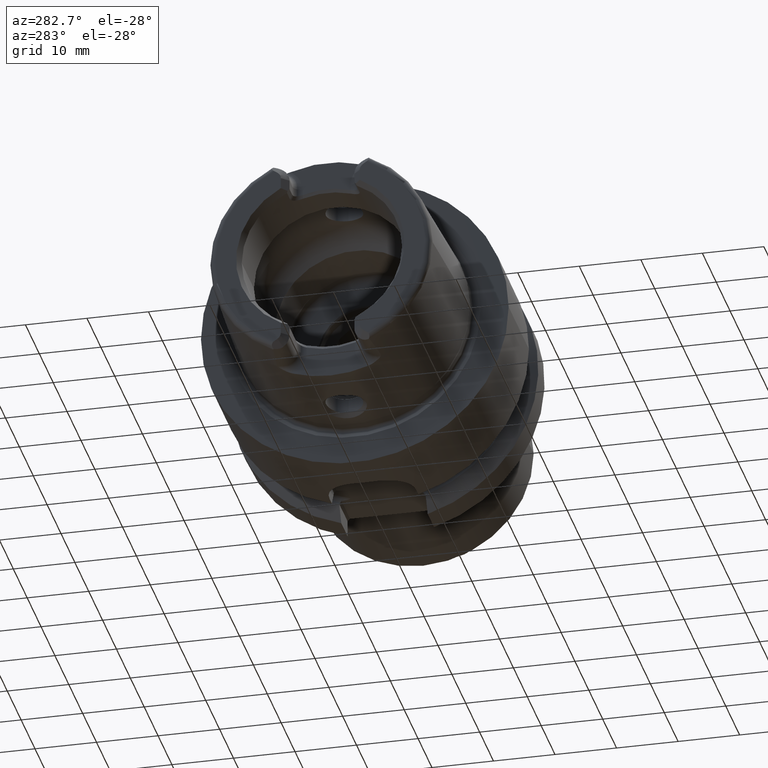
[diagram: clean part render]
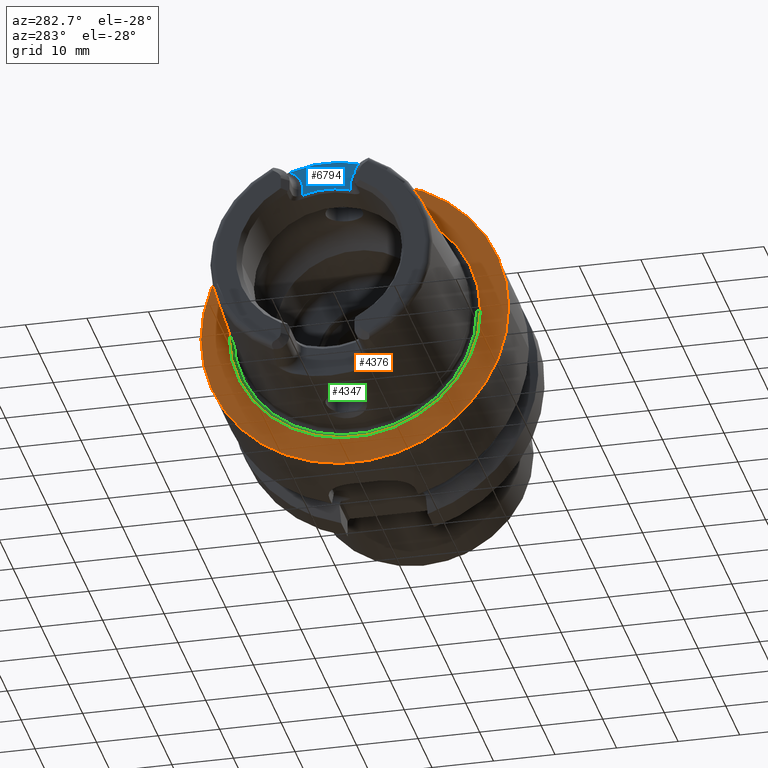
[diagram: same view with three faces highlighted in distinct colors, each labeled with its STEP entity id]
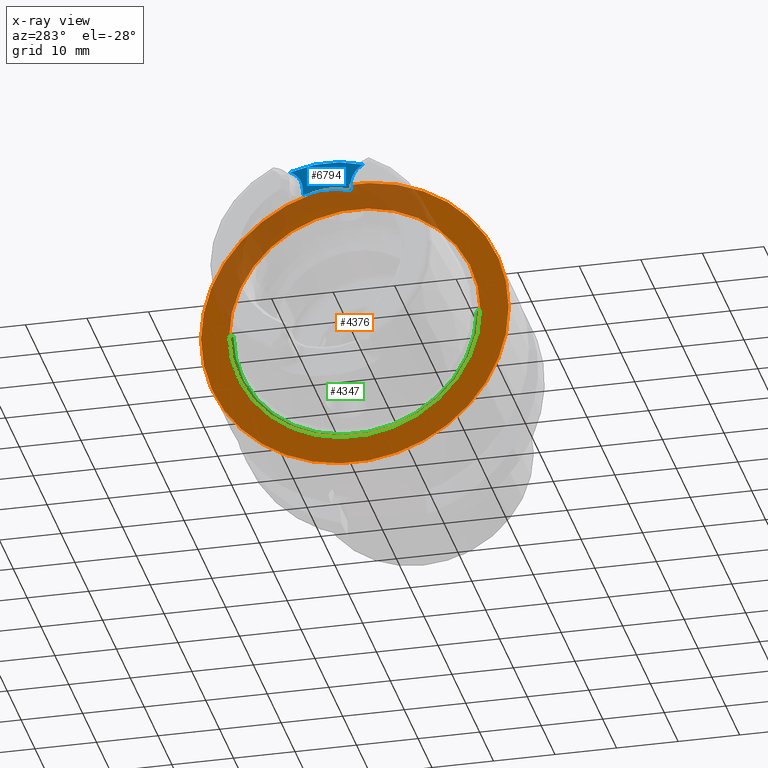
[diagram: x-ray of the same camera — body ghosted, the three highlighted faces saturated]
A machine part, auxiliary view with three faces highlighted in distinct colors.
The next image is the same camera in x-ray (body ghosted, the three faces saturated) — at least one of them is partly hidden behind the body in this view.
Their STEP definitions:

[orange] entity #4376 — the highlighted planar face has unit normal (1, 0, 0).
#867=CARTESIAN_POINT('',(0.E0,0.E0,0.E0));
#868=DIRECTION('',(1.E0,0.E0,0.E0));
#869=DIRECTION('',(0.E0,1.E0,0.E0));
#870=AXIS2_PLACEMENT_3D('',#867,#868,#869);
#872=CARTESIAN_POINT('',(0.E0,0.E0,0.E0));
#873=DIRECTION('',(-1.E0,0.E0,0.E0));
#874=DIRECTION('',(0.E0,1.E0,0.E0));
#875=AXIS2_PLACEMENT_3D('',#872,#873,#874);
#877=CARTESIAN_POINT('',(0.E0,0.E0,0.E0));
#878=DIRECTION('',(-1.E0,0.E0,0.E0));
#879=DIRECTION('',(0.E0,-1.E0,0.E0));
#880=AXIS2_PLACEMENT_3D('',#877,#878,#879);
#882=CARTESIAN_POINT('',(0.E0,0.E0,0.E0));
#883=DIRECTION('',(-1.E0,0.E0,0.E0));
#884=DIRECTION('',(0.E0,1.E0,0.E0));
#885=AXIS2_PLACEMENT_3D('',#882,#883,#884);
#2896=CARTESIAN_POINT('',(0.E0,-2.04248E1,0.E0));
#2897=VERTEX_POINT('',#2896);
#2898=CARTESIAN_POINT('',(0.E0,2.04248E1,0.E0));
#2899=VERTEX_POINT('',#2898);
#3238=CARTESIAN_POINT('',(0.E0,2.5E1,0.E0));
#3239=CARTESIAN_POINT('',(0.E0,-2.5E1,0.E0));
#3240=VERTEX_POINT('',#3238);
#3241=VERTEX_POINT('',#3239);
#4361=CARTESIAN_POINT('',(0.E0,0.E0,0.E0));
#4362=DIRECTION('',(1.E0,0.E0,0.E0));
#4363=DIRECTION('',(0.E0,-1.E0,0.E0));
#4364=AXIS2_PLACEMENT_3D('',#4361,#4362,#4363);
#4365=PLANE('',#4364);
#4367=ORIENTED_EDGE('',*,*,#4366,.T.);
#4369=ORIENTED_EDGE('',*,*,#4368,.F.);
#4370=EDGE_LOOP('',(#4367,#4369));
#4371=FACE_OUTER_BOUND('',#4370,.F.);
#4372=ORIENTED_EDGE('',*,*,#4356,.T.);
#4373=ORIENTED_EDGE('',*,*,#4340,.T.);
#4374=EDGE_LOOP('',(#4372,#4373));
#4375=FACE_BOUND('',#4374,.F.);
#4376=ADVANCED_FACE('',(#4371,#4375),#4365,.F.);
#871=CIRCLE('',#870,2.5E1);
#876=CIRCLE('',#875,2.5E1);
#881=CIRCLE('',#880,2.04248E1);
#886=CIRCLE('',#885,2.04248E1);
#4340=EDGE_CURVE('',#2899,#2897,#886,.T.);
#4356=EDGE_CURVE('',#2897,#2899,#881,.T.);
#4366=EDGE_CURVE('',#3240,#3241,#871,.T.);
#4368=EDGE_CURVE('',#3240,#3241,#876,.T.);

[blue] entity #6794 — the highlighted planar face has unit normal (-1, 0, 0).
#8=CARTESIAN_POINT('',(-2.03E1,0.E0,0.E0));
#9=DIRECTION('',(1.E0,0.E0,0.E0));
#10=DIRECTION('',(0.E0,3.252089046527E-1,9.456421988969E-1));
#11=AXIS2_PLACEMENT_3D('',#8,#9,#10);
#2740=DIRECTION('',(0.E0,1.605967836501E-11,1.E0));
#2741=VECTOR('',#2740,9.474000707151E-1);
#2742=CARTESIAN_POINT('',(-2.03E1,3.869999999992E0,1.293259992922E1));
#2743=LINE('',#2742,#2741);
#2744=CARTESIAN_POINT('',(-2.03E1,7.65E0,1.388E1));
#2745=DIRECTION('',(-1.E0,0.E0,0.E0));
#2746=DIRECTION('',(0.E0,-1.E0,0.E0));
#2747=AXIS2_PLACEMENT_3D('',#2744,#2745,#2746);
#2749=CARTESIAN_POINT('',(-2.03E1,-7.65E0,1.388E1));
#2750=DIRECTION('',(-1.E0,0.E0,0.E0));
#2751=DIRECTION('',(0.E0,4.547221569343E-1,8.906333476762E-1));
#2752=AXIS2_PLACEMENT_3D('',#2749,#2750,#2751);
#2754=DIRECTION('',(0.E0,2.687081703110E-11,-1.E0));
#2755=VECTOR('',#2754,9.474000706860E-1);
#2756=CARTESIAN_POINT('',(-2.03E1,-3.870000000016E0,1.387999999991E1));
#2757=LINE('',#2756,#2755);
#2758=CARTESIAN_POINT('',(-2.03E1,3.869999999992E0,1.293259992922E1));
#2759=CARTESIAN_POINT('',(-2.03E1,3.367341739340E0,1.308906659587E1));
#2760=CARTESIAN_POINT('',(-2.03E1,2.351605461968E0,1.333894307947E1));
#2761=CARTESIAN_POINT('',(-2.03E1,7.869237642455E-1,1.352896153447E1));
#2762=CARTESIAN_POINT('',(-2.03E1,-7.869237642206E-1,1.352896153447E1));
#2763=CARTESIAN_POINT('',(-2.03E1,-2.351605461924E0,1.333894307948E1));
#2764=CARTESIAN_POINT('',(-2.03E1,-3.367341739321E0,1.308906659588E1));
#2765=CARTESIAN_POINT('',(-2.03E1,-3.869999999991E0,1.293259992922E1));
#2916=CARTESIAN_POINT('',(-2.03E1,3.87E0,1.388E1));
#2918=VERTEX_POINT('',#2916);
#2920=CARTESIAN_POINT('',(-2.03E1,-3.87E0,1.388E1));
#2922=VERTEX_POINT('',#2920);
#2924=CARTESIAN_POINT('',(-2.03E1,5.931150246788E0,1.724659405422E1));
#2925=VERTEX_POINT('',#2924);
#2930=CARTESIAN_POINT('',(-2.03E1,-5.931150246788E0,1.724659405422E1));
#2931=VERTEX_POINT('',#2930);
#2963=CARTESIAN_POINT('',(-2.03E1,3.869999999992E0,1.293259992922E1));
#2964=VERTEX_POINT('',#2963);
#2965=CARTESIAN_POINT('',(-2.03E1,-3.869999999991E0,1.293259992922E1));
#2966=VERTEX_POINT('',#2965);
#6779=CARTESIAN_POINT('',(-2.03E1,0.E0,0.E0));
#6780=DIRECTION('',(-1.E0,0.E0,0.E0));
#6781=DIRECTION('',(0.E0,0.E0,1.E0));
#6782=AXIS2_PLACEMENT_3D('',#6779,#6780,#6781);
#6783=PLANE('',#6782);
#6784=ORIENTED_EDGE('',*,*,#3645,.T.);
#6785=ORIENTED_EDGE('',*,*,#3663,.T.);
#6786=ORIENTED_EDGE('',*,*,#3425,.T.);
#6788=ORIENTED_EDGE('',*,*,#6787,.T.);
#6790=ORIENTED_EDGE('',*,*,#6789,.T.);
#6791=ORIENTED_EDGE('',*,*,#6770,.F.);
#6792=EDGE_LOOP('',(#6784,#6785,#6786,#6788,#6790,#6791));
#6793=FACE_OUTER_BOUND('',#6792,.F.);
#6794=ADVANCED_FACE('',(#6793),#6783,.T.);
#12=CIRCLE('',#11,1.823797E1);
#2748=CIRCLE('',#2747,3.78E0);
#2753=CIRCLE('',#2752,3.78E0);
#2766=B_SPLINE_CURVE_WITH_KNOTS('',3,(#2758,#2759,#2760,#2761,#2762,#2763,#2764,
#2765),.UNSPECIFIED.,.F.,.F.,(4,1,1,1,1,4),(0.E0,2.E-1,4.E-1,6.E-1,8.E-1,1.E0),
.UNSPECIFIED.);
#3425=EDGE_CURVE('',#2925,#2931,#12,.T.);
#3645=EDGE_CURVE('',#2964,#2918,#2743,.T.);
#3663=EDGE_CURVE('',#2918,#2925,#2748,.T.);
#6770=EDGE_CURVE('',#2964,#2966,#2766,.T.);
#6787=EDGE_CURVE('',#2931,#2922,#2753,.T.);
#6789=EDGE_CURVE('',#2922,#2966,#2757,.T.);

[green] entity #4347 — the highlighted conical surface has half-angle 68.5 deg.
#854=CARTESIAN_POINT('',(2.560809102655E-1,0.E0,0.E0));
#855=DIRECTION('',(-1.E0,0.E0,0.E0));
#856=DIRECTION('',(0.E0,1.E0,0.E0));
#857=AXIS2_PLACEMENT_3D('',#854,#855,#856);
#859=DIRECTION('',(3.665012267243E-1,9.304175679820E-1,0.E0));
#860=VECTOR('',#859,6.987177438786E-1);
#861=CARTESIAN_POINT('',(0.E0,-2.04248E1,0.E0));
#862=LINE('',#861,#860);
#863=DIRECTION('',(3.665012267243E-1,-9.304175679820E-1,0.E0));
#864=VECTOR('',#863,6.987177438786E-1);
#865=CARTESIAN_POINT('',(0.E0,2.04248E1,0.E0));
#866=LINE('',#865,#864);
#882=CARTESIAN_POINT('',(0.E0,0.E0,0.E0));
#883=DIRECTION('',(-1.E0,0.E0,0.E0));
#884=DIRECTION('',(0.E0,1.E0,0.E0));
#885=AXIS2_PLACEMENT_3D('',#882,#883,#884);
#2872=CARTESIAN_POINT('',(2.560809102655E-1,-1.977470073603E1,0.E0));
#2874=VERTEX_POINT('',#2872);
#2880=CARTESIAN_POINT('',(2.560809102655E-1,1.977470073603E1,0.E0));
#2882=VERTEX_POINT('',#2880);
#2896=CARTESIAN_POINT('',(0.E0,-2.04248E1,0.E0));
#2897=VERTEX_POINT('',#2896);
#2898=CARTESIAN_POINT('',(0.E0,2.04248E1,0.E0));
#2899=VERTEX_POINT('',#2898);
#4333=CARTESIAN_POINT('',(1.280404551328E-1,0.E0,0.E0));
#4334=DIRECTION('',(-1.E0,0.E0,0.E0));
#4335=DIRECTION('',(0.E0,-1.E0,0.E0));
#4336=AXIS2_PLACEMENT_3D('',#4333,#4334,#4335);
#4337=CONICAL_SURFACE('',#4336,2.009975036802E1,6.85E1);
#4339=ORIENTED_EDGE('',*,*,#4338,.F.);
#4341=ORIENTED_EDGE('',*,*,#4340,.F.);
#4343=ORIENTED_EDGE('',*,*,#4342,.T.);
#4344=ORIENTED_EDGE('',*,*,#4328,.T.);
#4345=EDGE_LOOP('',(#4339,#4341,#4343,#4344));
#4346=FACE_OUTER_BOUND('',#4345,.F.);
#4347=ADVANCED_FACE('',(#4346),#4337,.F.);
#858=CIRCLE('',#857,1.977470073603E1);
#886=CIRCLE('',#885,2.04248E1);
#4328=EDGE_CURVE('',#2882,#2874,#858,.T.);
#4338=EDGE_CURVE('',#2897,#2874,#862,.T.);
#4340=EDGE_CURVE('',#2899,#2897,#886,.T.);
#4342=EDGE_CURVE('',#2899,#2882,#866,.T.);